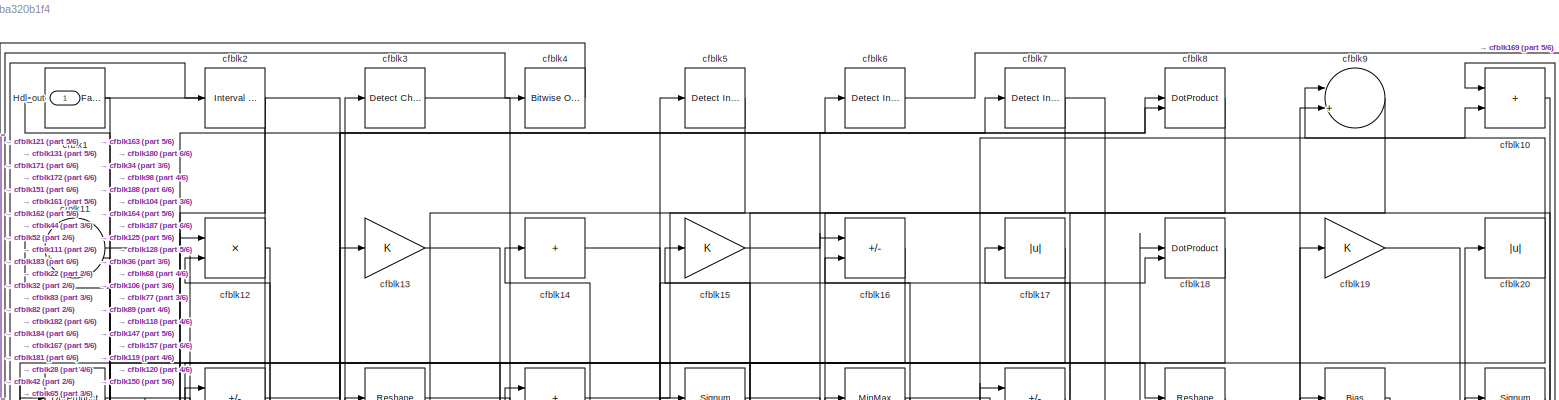
[diagram: root canvas - part 1/6, full width, top band]
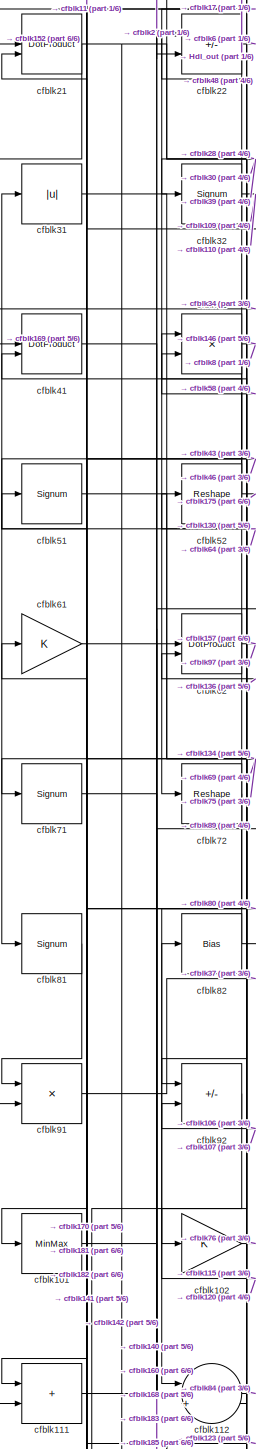
[diagram: root canvas - part 2/6, middle left region]
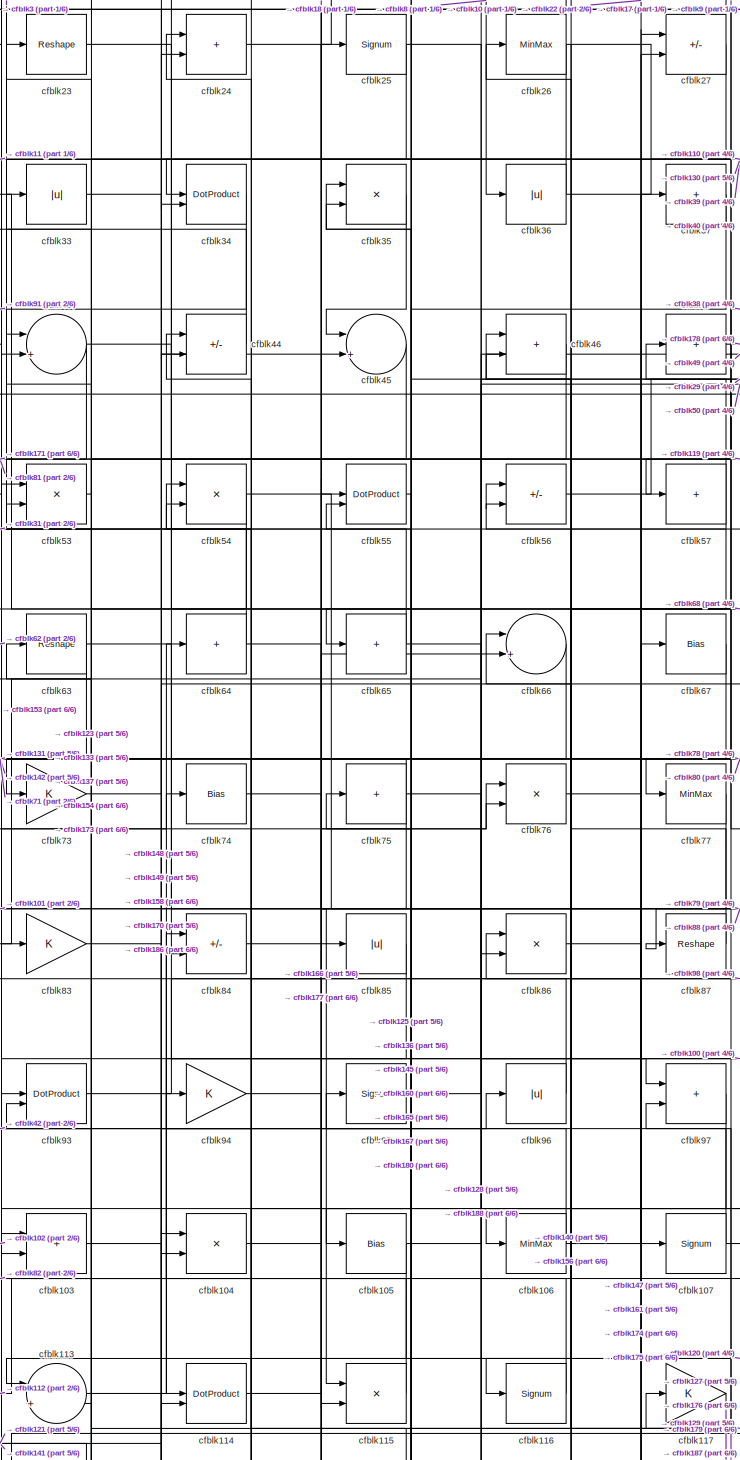
[diagram: root canvas - part 3/6, central region]
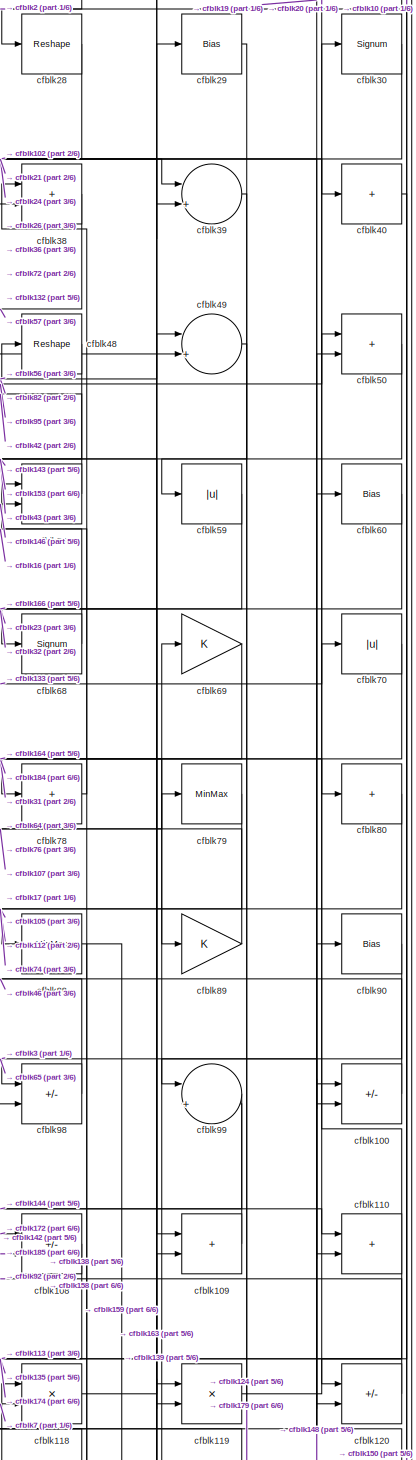
[diagram: root canvas - part 4/6, middle right region]
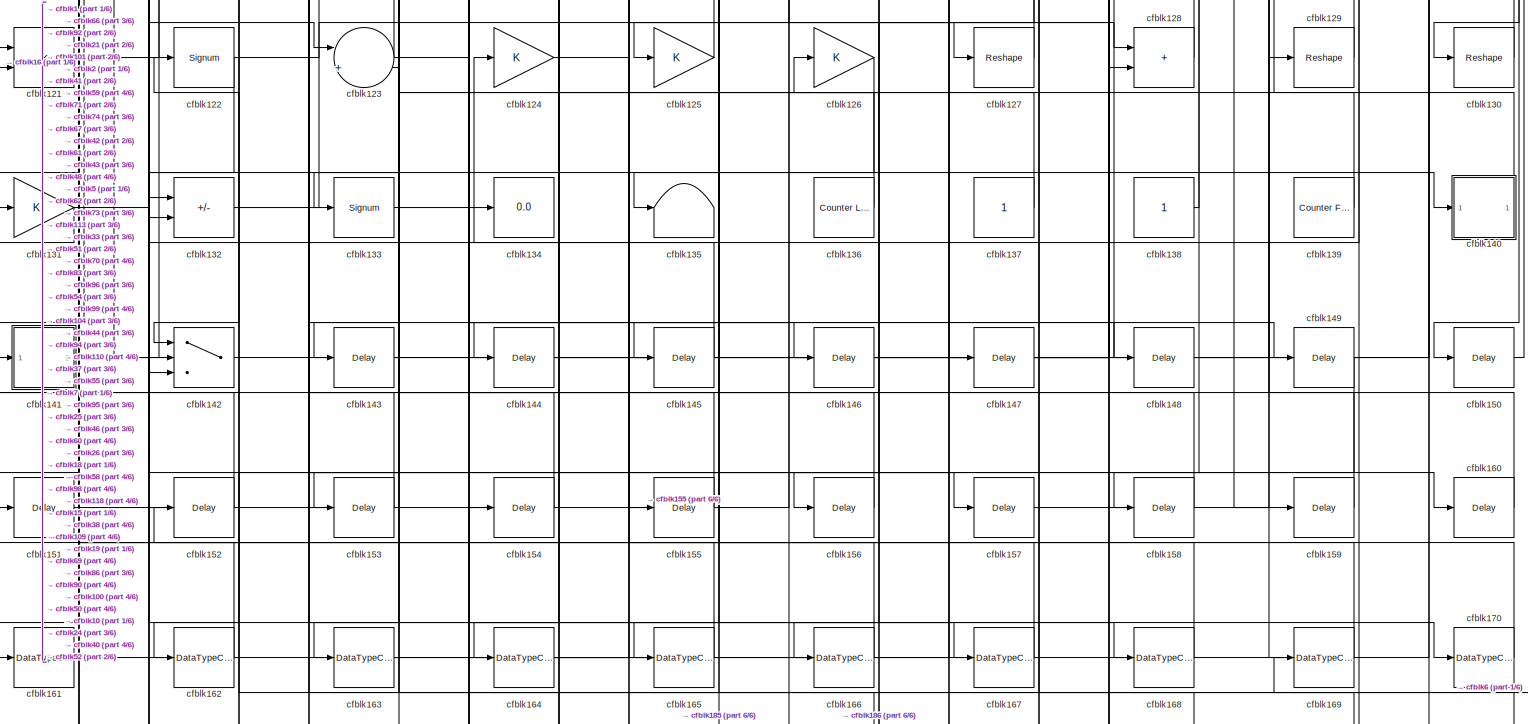
[diagram: root canvas - part 5/6, full width, bottom band]
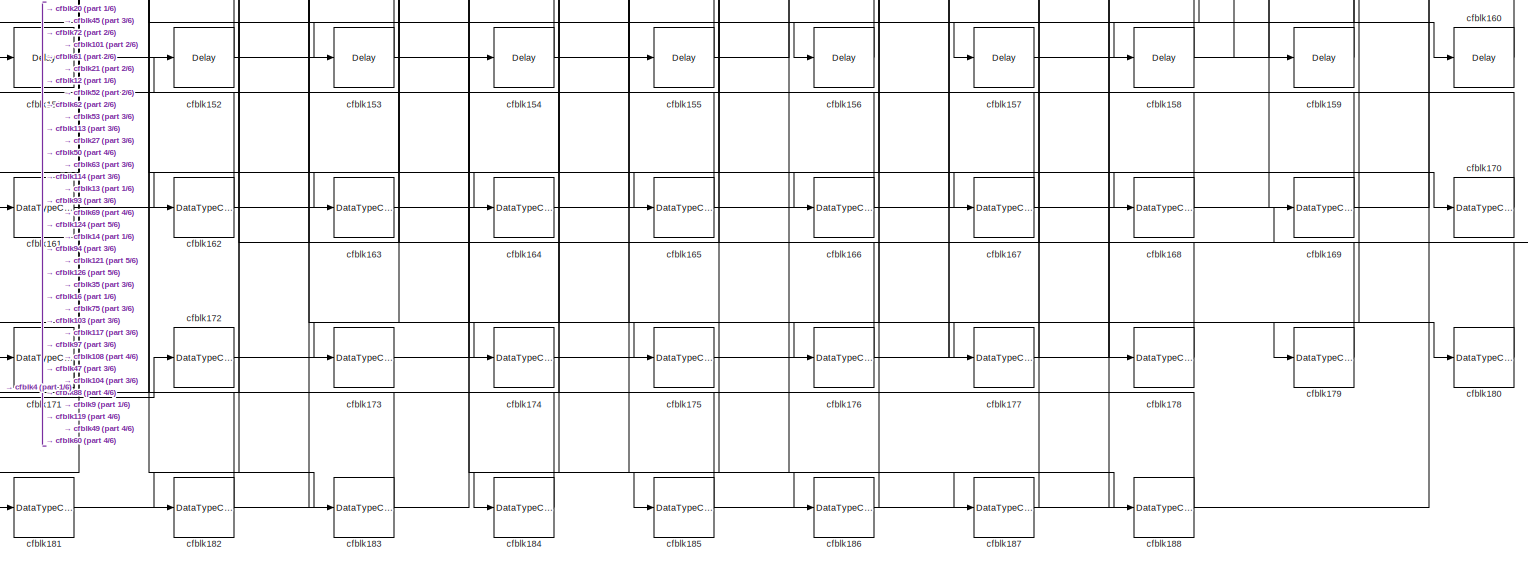
[diagram: root canvas - part 6/6, full width, bottom band]
MODEL slx_c24ba320b1f4
KIND model
CONFIG AbsTol = auto
CONFIG EnableMultiTasking = off
CONFIG FixedStep = auto
CONFIG MaxStep = auto
CONFIG MinStep = auto
CONFIG RelTol = 1e-3
CONFIG SampleTimeConstraint = Unconstrained
CONFIG SolverName = VariableStepAuto
CONFIG StartTime = 0.0
CONFIG StopTime = 10.0
BLOCK [Outport] Hdl_out
  OutDataTypeStr = uint8
BLOCK [Reference] cfblk1  REF=hdlsllib/Logic and Bit
Operations/Detect Fall
Negative
  SourceBlock = hdlsllib/Logic and Bit\nOperations/Detect Fall\nNegative
  SourceType = Detect Fall Negative
BLOCK [Sum] cfblk10
  IconShape = rectangular
  OutDataTypeStr = uint8
BLOCK [Sum] cfblk100
  IconShape = rectangular
  Inputs = +-
  OutDataTypeStr = uint8
BLOCK [MinMax] cfblk101
  OutDataTypeStr = uint8
BLOCK [Gain] cfblk102
  OutDataTypeStr = uint8
BLOCK [Sum] cfblk103
  IconShape = rectangular
  OutDataTypeStr = uint8
BLOCK [Product] cfblk104
  Inputs = */
  OutDataTypeStr = uint8
  RndMeth = Zero
  SaturateOnIntegerOverflow = on
BLOCK [Bias] cfblk105
  Bias = 0.0
  SaturateOnIntegerOverflow = off
BLOCK [MinMax] cfblk106
  OutDataTypeStr = uint8
BLOCK [Signum] cfblk107
BLOCK [Sum] cfblk108
  IconShape = rectangular
  Inputs = +-
  OutDataTypeStr = uint8
BLOCK [Sum] cfblk109
  IconShape = rectangular
  OutDataTypeStr = uint8
BLOCK [Sum] cfblk11
  Inputs = |++
  OutDataTypeStr = uint8
BLOCK [Sum] cfblk110
  IconShape = rectangular
  OutDataTypeStr = uint8
BLOCK [Sum] cfblk111
  IconShape = rectangular
  OutDataTypeStr = uint8
BLOCK [Sum] cfblk112
  Inputs = |++
  OutDataTypeStr = uint8
BLOCK [Sum] cfblk113
  Inputs = |++
  OutDataTypeStr = uint8
BLOCK [DotProduct] cfblk114
  OutDataTypeStr = uint8
BLOCK [Product] cfblk115
  Inputs = */
  OutDataTypeStr = uint8
  RndMeth = Zero
  SaturateOnIntegerOverflow = on
BLOCK [Signum] cfblk116
BLOCK [Gain] cfblk117
  OutDataTypeStr = uint8
BLOCK [Product] cfblk118
  Inputs = */
  OutDataTypeStr = uint8
  RndMeth = Zero
  SaturateOnIntegerOverflow = on
BLOCK [Product] cfblk119
  Inputs = */
  OutDataTypeStr = uint8
  RndMeth = Zero
  SaturateOnIntegerOverflow = on
BLOCK [Product] cfblk12
  Inputs = */
  OutDataTypeStr = uint8
  RndMeth = Zero
  SaturateOnIntegerOverflow = on
BLOCK [Sum] cfblk120
  IconShape = rectangular
  Inputs = +-
  OutDataTypeStr = uint8
BLOCK [Product] cfblk121
  Inputs = */
  OutDataTypeStr = uint8
  RndMeth = Zero
  SaturateOnIntegerOverflow = on
BLOCK [Signum] cfblk122
BLOCK [Sum] cfblk123
  Inputs = |++
  OutDataTypeStr = uint8
BLOCK [Gain] cfblk124
  OutDataTypeStr = uint8
BLOCK [Gain] cfblk125
  OutDataTypeStr = uint8
BLOCK [Gain] cfblk126
  OutDataTypeStr = uint8
BLOCK [Reshape] cfblk127
BLOCK [Sum] cfblk128
  IconShape = rectangular
  OutDataTypeStr = uint8
BLOCK [Reshape] cfblk129
BLOCK [Gain] cfblk13
  OutDataTypeStr = uint8
BLOCK [Reshape] cfblk130
BLOCK [Gain] cfblk131
  OutDataTypeStr = uint8
BLOCK [Sum] cfblk132
  IconShape = rectangular
  Inputs = +-
  OutDataTypeStr = uint8
BLOCK [Signum] cfblk133
BLOCK [Display] cfblk134
  Decimation = 1
BLOCK [Terminator] cfblk135
BLOCK [Reference] cfblk136  REF=hdlsllib/Sources/Counter
Limited
  SourceBlock = hdlsllib/Sources/Counter\nLimited
  SourceType = Counter Limited
BLOCK [Constant] cfblk137
  OutDataTypeStr = uint8
  SampleTime = -1
BLOCK [Constant] cfblk138
  OutDataTypeStr = uint8
  SampleTime = -1
BLOCK [Reference] cfblk139  REF=hdlsllib/Sources/Counter
Free-Running
  SourceBlock = hdlsllib/Sources/Counter\nFree-Running
  SourceType = Counter Free-Running
BLOCK [Sum] cfblk14
  IconShape = rectangular
  Inputs = +
  OutDataTypeStr = uint8
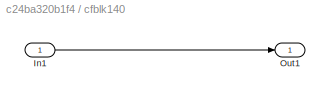
BLOCK [SubSystem] cfblk140
  LibrarySourceBlock = hdlsllib/Ports &\nSubsystems/Subsystem
BLOCK [Inport] cfblk140/In1
BLOCK [Outport] cfblk140/Out1
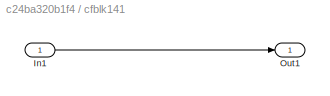
BLOCK [SubSystem] cfblk141
  LibrarySourceBlock = hdlsllib/Ports &\nSubsystems/Subsystem
BLOCK [Inport] cfblk141/In1
BLOCK [Outport] cfblk141/Out1
BLOCK [Switch] cfblk142
  InputSameDT = off
  OutDataTypeStr = uint8
  SaturateOnIntegerOverflow = off
BLOCK [Delay] cfblk143
  InputPortMap = u0
  SampleTime = 1
BLOCK [Delay] cfblk144
  InputPortMap = u0
  SampleTime = 1
BLOCK [Delay] cfblk145
  InputPortMap = u0
  SampleTime = 1
BLOCK [Delay] cfblk146
  InputPortMap = u0
  SampleTime = 1
BLOCK [Delay] cfblk147
  InputPortMap = u0
  SampleTime = 1
BLOCK [Delay] cfblk148
  InputPortMap = u0
  SampleTime = 1
BLOCK [Delay] cfblk149
  InputPortMap = u0
  SampleTime = 1
BLOCK [Gain] cfblk15
  OutDataTypeStr = uint8
BLOCK [Delay] cfblk150
  InputPortMap = u0
  SampleTime = 1
BLOCK [Delay] cfblk151
  InputPortMap = u0
  SampleTime = 1
BLOCK [Delay] cfblk152
  InputPortMap = u0
  SampleTime = 1
BLOCK [Delay] cfblk153
  InputPortMap = u0
  SampleTime = 1
BLOCK [Delay] cfblk154
  InputPortMap = u0
  SampleTime = 1
BLOCK [Delay] cfblk155
  InputPortMap = u0
  SampleTime = 1
BLOCK [Delay] cfblk156
  InputPortMap = u0
  SampleTime = 1
BLOCK [Delay] cfblk157
  InputPortMap = u0
  SampleTime = 1
BLOCK [Delay] cfblk158
  InputPortMap = u0
  SampleTime = 1
BLOCK [Delay] cfblk159
  InputPortMap = u0
  SampleTime = 1
BLOCK [Sum] cfblk16
  IconShape = rectangular
  Inputs = +-
  OutDataTypeStr = uint8
BLOCK [Delay] cfblk160
  InputPortMap = u0
  SampleTime = 1
BLOCK [DataTypeConversion] cfblk161
  OutDataTypeStr = uint8
  RndMeth = Floor
  SaturateOnIntegerOverflow = off
BLOCK [DataTypeConversion] cfblk162
  OutDataTypeStr = uint8
  RndMeth = Floor
  SaturateOnIntegerOverflow = off
BLOCK [DataTypeConversion] cfblk163
  OutDataTypeStr = uint8
  RndMeth = Floor
  SaturateOnIntegerOverflow = off
BLOCK [DataTypeConversion] cfblk164
  OutDataTypeStr = uint8
  RndMeth = Floor
  SaturateOnIntegerOverflow = off
BLOCK [DataTypeConversion] cfblk165
  OutDataTypeStr = uint8
  RndMeth = Floor
  SaturateOnIntegerOverflow = off
BLOCK [DataTypeConversion] cfblk166
  OutDataTypeStr = uint8
  RndMeth = Floor
  SaturateOnIntegerOverflow = off
BLOCK [DataTypeConversion] cfblk167
  OutDataTypeStr = uint8
  RndMeth = Floor
  SaturateOnIntegerOverflow = off
BLOCK [DataTypeConversion] cfblk168
  OutDataTypeStr = uint8
  RndMeth = Floor
  SaturateOnIntegerOverflow = off
BLOCK [DataTypeConversion] cfblk169
  OutDataTypeStr = uint8
  RndMeth = Floor
  SaturateOnIntegerOverflow = off
BLOCK [Abs] cfblk17
  OutDataTypeStr = uint8
  SaturateOnIntegerOverflow = off
BLOCK [DataTypeConversion] cfblk170
  OutDataTypeStr = uint8
  RndMeth = Floor
  SaturateOnIntegerOverflow = off
BLOCK [DataTypeConversion] cfblk171
  OutDataTypeStr = uint8
  RndMeth = Floor
  SaturateOnIntegerOverflow = off
BLOCK [DataTypeConversion] cfblk172
  OutDataTypeStr = uint8
  RndMeth = Floor
  SaturateOnIntegerOverflow = off
BLOCK [DataTypeConversion] cfblk173
  OutDataTypeStr = uint8
  RndMeth = Floor
  SaturateOnIntegerOverflow = off
BLOCK [DataTypeConversion] cfblk174
  OutDataTypeStr = uint8
  RndMeth = Floor
  SaturateOnIntegerOverflow = off
BLOCK [DataTypeConversion] cfblk175
  OutDataTypeStr = uint8
  RndMeth = Floor
  SaturateOnIntegerOverflow = off
BLOCK [DataTypeConversion] cfblk176
  OutDataTypeStr = uint8
  RndMeth = Floor
  SaturateOnIntegerOverflow = off
BLOCK [DataTypeConversion] cfblk177
  OutDataTypeStr = uint8
  RndMeth = Floor
  SaturateOnIntegerOverflow = off
BLOCK [DataTypeConversion] cfblk178
  OutDataTypeStr = uint8
  RndMeth = Floor
  SaturateOnIntegerOverflow = off
BLOCK [DataTypeConversion] cfblk179
  OutDataTypeStr = uint8
  RndMeth = Floor
  SaturateOnIntegerOverflow = off
BLOCK [DotProduct] cfblk18
  OutDataTypeStr = uint8
BLOCK [DataTypeConversion] cfblk180
  OutDataTypeStr = uint8
  RndMeth = Floor
  SaturateOnIntegerOverflow = off
BLOCK [DataTypeConversion] cfblk181
  OutDataTypeStr = uint8
  RndMeth = Floor
  SaturateOnIntegerOverflow = off
BLOCK [DataTypeConversion] cfblk182
  OutDataTypeStr = uint8
  RndMeth = Floor
  SaturateOnIntegerOverflow = off
BLOCK [DataTypeConversion] cfblk183
  OutDataTypeStr = uint8
  RndMeth = Floor
  SaturateOnIntegerOverflow = off
BLOCK [DataTypeConversion] cfblk184
  OutDataTypeStr = uint8
  RndMeth = Floor
  SaturateOnIntegerOverflow = off
BLOCK [DataTypeConversion] cfblk185
  OutDataTypeStr = uint8
  RndMeth = Floor
  SaturateOnIntegerOverflow = off
BLOCK [DataTypeConversion] cfblk186
  OutDataTypeStr = uint8
  RndMeth = Floor
  SaturateOnIntegerOverflow = off
BLOCK [DataTypeConversion] cfblk187
  OutDataTypeStr = uint8
  RndMeth = Floor
  SaturateOnIntegerOverflow = off
BLOCK [DataTypeConversion] cfblk188
  OutDataTypeStr = uint8
  RndMeth = Floor
  SaturateOnIntegerOverflow = off
BLOCK [Gain] cfblk19
  OutDataTypeStr = uint8
BLOCK [Reference] cfblk2  REF=hdlsllib/Logic and Bit
Operations/Interval Test
  SourceBlock = hdlsllib/Logic and Bit\nOperations/Interval Test
  SourceType = Interval Test
BLOCK [Abs] cfblk20
  OutDataTypeStr = uint8
  SaturateOnIntegerOverflow = off
BLOCK [DotProduct] cfblk21
  OutDataTypeStr = uint8
BLOCK [Sum] cfblk22
  IconShape = rectangular
  Inputs = +-
  OutDataTypeStr = uint8
BLOCK [Reshape] cfblk23
BLOCK [Sum] cfblk24
  IconShape = rectangular
  OutDataTypeStr = uint8
BLOCK [Signum] cfblk25
BLOCK [MinMax] cfblk26
  OutDataTypeStr = uint8
BLOCK [Sum] cfblk27
  IconShape = rectangular
  Inputs = +-
  OutDataTypeStr = uint8
BLOCK [Reshape] cfblk28
BLOCK [Bias] cfblk29
  Bias = 0.0
  SaturateOnIntegerOverflow = off
BLOCK [Reference] cfblk3  REF=simulink/Logic and Bit
Operations/Detect
Change
  LibrarySourceBlock = hdlsllib/Logic and Bit\nOperations/Detect\nChange
  SourceBlock = simulink/Logic and Bit\nOperations/Detect\nChange
  SourceType = Detect Change
BLOCK [Signum] cfblk30
BLOCK [Abs] cfblk31
  OutDataTypeStr = uint8
  SaturateOnIntegerOverflow = off
BLOCK [Signum] cfblk32
BLOCK [Abs] cfblk33
  OutDataTypeStr = uint8
  SaturateOnIntegerOverflow = off
BLOCK [DotProduct] cfblk34
  OutDataTypeStr = uint8
BLOCK [Product] cfblk35
  Inputs = */
  OutDataTypeStr = uint8
  RndMeth = Zero
  SaturateOnIntegerOverflow = on
BLOCK [Abs] cfblk36
  OutDataTypeStr = uint8
  SaturateOnIntegerOverflow = off
BLOCK [Sum] cfblk37
  IconShape = rectangular
  Inputs = +
  OutDataTypeStr = uint8
BLOCK [Sum] cfblk38
  IconShape = rectangular
  OutDataTypeStr = uint8
BLOCK [Sum] cfblk39
  Inputs = |++
  OutDataTypeStr = uint8
BLOCK [Reference] cfblk4  REF=simulink/Logic and Bit
Operations/Bitwise
Operator
  LibrarySourceBlock = hdlsllib/Logic and Bit\nOperations/Bitwise\nOperator
  SourceBlock = simulink/Logic and Bit\nOperations/Bitwise\nOperator
  SourceType = Bitwise Operator
BLOCK [Sum] cfblk40
  IconShape = rectangular
  Inputs = +
  OutDataTypeStr = uint8
BLOCK [DotProduct] cfblk41
  OutDataTypeStr = uint8
BLOCK [Product] cfblk42
  Inputs = */
  OutDataTypeStr = uint8
  RndMeth = Zero
  SaturateOnIntegerOverflow = on
BLOCK [Sum] cfblk43
  Inputs = |++
  OutDataTypeStr = uint8
BLOCK [Sum] cfblk44
  IconShape = rectangular
  Inputs = +-
  OutDataTypeStr = uint8
BLOCK [Sum] cfblk45
  Inputs = |++
  OutDataTypeStr = uint8
BLOCK [Sum] cfblk46
  IconShape = rectangular
  OutDataTypeStr = uint8
BLOCK [Sum] cfblk47
  IconShape = rectangular
  Inputs = +
  OutDataTypeStr = uint8
BLOCK [Reshape] cfblk48
BLOCK [Sum] cfblk49
  Inputs = |++
  OutDataTypeStr = uint8
BLOCK [Reference] cfblk5  REF=simulink/Logic and Bit
Operations/Detect
Increase
  LibrarySourceBlock = hdlsllib/Logic and Bit\nOperations/Detect\nIncrease
  SourceBlock = simulink/Logic and Bit\nOperations/Detect\nIncrease
  SourceType = Detect Increase
BLOCK [Sum] cfblk50
  IconShape = rectangular
  OutDataTypeStr = uint8
BLOCK [Signum] cfblk51
BLOCK [Reshape] cfblk52
BLOCK [Product] cfblk53
  Inputs = */
  OutDataTypeStr = uint8
  RndMeth = Zero
  SaturateOnIntegerOverflow = on
BLOCK [Product] cfblk54
  Inputs = */
  OutDataTypeStr = uint8
  RndMeth = Zero
  SaturateOnIntegerOverflow = on
BLOCK [DotProduct] cfblk55
  OutDataTypeStr = uint8
BLOCK [Sum] cfblk56
  IconShape = rectangular
  Inputs = +-
  OutDataTypeStr = uint8
BLOCK [Sum] cfblk57
  IconShape = rectangular
  Inputs = +
  OutDataTypeStr = uint8
BLOCK [Sum] cfblk58
  IconShape = rectangular
  OutDataTypeStr = uint8
BLOCK [Abs] cfblk59
  OutDataTypeStr = uint8
  SaturateOnIntegerOverflow = off
BLOCK [Reference] cfblk6  REF=simulink/Logic and Bit
Operations/Detect
Increase
  LibrarySourceBlock = hdlsllib/Logic and Bit\nOperations/Detect\nIncrease
  SourceBlock = simulink/Logic and Bit\nOperations/Detect\nIncrease
  SourceType = Detect Increase
BLOCK [Bias] cfblk60
  Bias = 0.0
  SaturateOnIntegerOverflow = off
BLOCK [Gain] cfblk61
  OutDataTypeStr = uint8
BLOCK [DotProduct] cfblk62
  OutDataTypeStr = uint8
BLOCK [Reshape] cfblk63
BLOCK [Sum] cfblk64
  IconShape = rectangular
  Inputs = +
  OutDataTypeStr = uint8
BLOCK [Sum] cfblk65
  IconShape = rectangular
  Inputs = +
  OutDataTypeStr = uint8
BLOCK [Sum] cfblk66
  Inputs = |++
  OutDataTypeStr = uint8
BLOCK [Bias] cfblk67
  Bias = 0.0
  SaturateOnIntegerOverflow = off
BLOCK [Signum] cfblk68
BLOCK [Gain] cfblk69
  OutDataTypeStr = uint8
BLOCK [Reference] cfblk7  REF=simulink/Logic and Bit
Operations/Detect
Increase
  LibrarySourceBlock = hdlsllib/Logic and Bit\nOperations/Detect\nIncrease
  SourceBlock = simulink/Logic and Bit\nOperations/Detect\nIncrease
  SourceType = Detect Increase
BLOCK [Abs] cfblk70
  OutDataTypeStr = uint8
  SaturateOnIntegerOverflow = off
BLOCK [Signum] cfblk71
BLOCK [Reshape] cfblk72
BLOCK [Gain] cfblk73
  OutDataTypeStr = uint8
BLOCK [Bias] cfblk74
  Bias = 0.0
  SaturateOnIntegerOverflow = off
BLOCK [Sum] cfblk75
  IconShape = rectangular
  Inputs = +
  OutDataTypeStr = uint8
BLOCK [Product] cfblk76
  Inputs = */
  OutDataTypeStr = uint8
  RndMeth = Zero
  SaturateOnIntegerOverflow = on
BLOCK [MinMax] cfblk77
  OutDataTypeStr = uint8
BLOCK [Sum] cfblk78
  IconShape = rectangular
  Inputs = +
  OutDataTypeStr = uint8
BLOCK [MinMax] cfblk79
  OutDataTypeStr = uint8
BLOCK [DotProduct] cfblk8
  OutDataTypeStr = uint8
BLOCK [Sum] cfblk80
  IconShape = rectangular
  Inputs = +
  OutDataTypeStr = uint8
BLOCK [Signum] cfblk81
BLOCK [Bias] cfblk82
  Bias = 0.0
  SaturateOnIntegerOverflow = off
BLOCK [Gain] cfblk83
  OutDataTypeStr = uint8
BLOCK [Sum] cfblk84
  IconShape = rectangular
  Inputs = +-
  OutDataTypeStr = uint8
BLOCK [Abs] cfblk85
  OutDataTypeStr = uint8
  SaturateOnIntegerOverflow = off
BLOCK [Product] cfblk86
  Inputs = */
  OutDataTypeStr = uint8
  RndMeth = Zero
  SaturateOnIntegerOverflow = on
BLOCK [Reshape] cfblk87
BLOCK [MinMax] cfblk88
  OutDataTypeStr = uint8
BLOCK [Gain] cfblk89
  OutDataTypeStr = uint8
BLOCK [Sum] cfblk9
  Inputs = |++
  OutDataTypeStr = uint8
BLOCK [Bias] cfblk90
  Bias = 0.0
  SaturateOnIntegerOverflow = off
BLOCK [Product] cfblk91
  Inputs = */
  OutDataTypeStr = uint8
  RndMeth = Zero
  SaturateOnIntegerOverflow = on
BLOCK [Sum] cfblk92
  IconShape = rectangular
  Inputs = +-
  OutDataTypeStr = uint8
BLOCK [DotProduct] cfblk93
  OutDataTypeStr = uint8
BLOCK [Gain] cfblk94
  OutDataTypeStr = uint8
BLOCK [Signum] cfblk95
BLOCK [Abs] cfblk96
  OutDataTypeStr = uint8
  SaturateOnIntegerOverflow = off
BLOCK [Sum] cfblk97
  IconShape = rectangular
  OutDataTypeStr = uint8
BLOCK [Sum] cfblk98
  IconShape = rectangular
  Inputs = +-
  OutDataTypeStr = uint8
BLOCK [Sum] cfblk99
  Inputs = |++
  OutDataTypeStr = uint8
NET cfblk100:1 -> cfblk56:1, cfblk56:2
NET cfblk101:1 -> cfblk123:1, cfblk160:1
LINE cfblk102:1 -> cfblk76:2
LINE cfblk103:1 -> cfblk186:1
NET cfblk104:1 -> cfblk128:1, cfblk18:2, cfblk66:2
NET cfblk105:1 -> cfblk115:2, cfblk49:2
NET cfblk106:1 -> cfblk10:2, cfblk22:1
NET cfblk107:1 -> cfblk42:2, cfblk79:1
LINE cfblk108:1 -> cfblk174:1
LINE cfblk109:1 -> cfblk99:2
LINE cfblk10:1 -> cfblk120:1
NET cfblk110:1 -> cfblk135:1, cfblk30:1
LINE cfblk111:1 -> cfblk8:1
LINE cfblk112:1 -> cfblk84:1
NET cfblk113:1 -> cfblk148:1, cfblk64:1
LINE cfblk114:1 -> cfblk76:1
LINE cfblk115:1 -> cfblk82:1
LINE cfblk116:1 -> cfblk84:2
LINE cfblk117:1 -> cfblk176:1
LINE cfblk118:1 -> cfblk49:1
LINE cfblk119:1 -> cfblk20:1
LINE cfblk11:1 -> cfblk83:1
NET cfblk120:1 -> cfblk113:1, cfblk92:2
LINE cfblk121:1 -> cfblk43:2
NET cfblk122:1 -> cfblk127:1, cfblk142:3
NET cfblk123:1 -> cfblk61:1, cfblk96:1
LINE cfblk124:1 -> cfblk155:1
NET cfblk125:1 -> cfblk44:1, cfblk94:1
LINE cfblk126:1 -> cfblk185:1
NET cfblk127:1 -> cfblk26:1, cfblk54:1
LINE cfblk128:1 -> cfblk15:1
LINE cfblk129:1 -> cfblk86:1
LINE cfblk12:1 -> cfblk182:1
LINE cfblk130:1 -> cfblk52:1
NET cfblk131:1 -> cfblk2:1, cfblk74:1
LINE cfblk132:1 -> cfblk38:2
LINE cfblk133:1 -> cfblk70:1
NET cfblk136:1 -> cfblk62:2, cfblk95:1
LINE cfblk137:1 -> cfblk43:1
LINE cfblk138:1 -> cfblk38:1
LINE cfblk139:1 -> cfblk69:1
LINE cfblk13:1 -> cfblk180:1
LINE cfblk140/In1:1 -> cfblk140/Out1:1
NET cfblk140:1 -> cfblk46:2, cfblk54:2
LINE cfblk141/In1:1 -> cfblk141/Out1:1
LINE cfblk141:1 -> cfblk24:2
NET cfblk142:1 -> cfblk118:1, cfblk50:2
LINE cfblk143:1 -> cfblk98:2
LINE cfblk144:1 -> cfblk109:2
LINE cfblk145:1 -> cfblk132:1
LINE cfblk146:1 -> cfblk58:2
LINE cfblk147:1 -> cfblk18:1
LINE cfblk148:1 -> cfblk100:1
LINE cfblk149:1 -> cfblk162:1
LINE cfblk14:1 -> cfblk187:1
LINE cfblk150:1 -> cfblk10:1
LINE cfblk151:1 -> cfblk16:1
LINE cfblk152:1 -> cfblk21:1
LINE cfblk153:1 -> cfblk53:1
LINE cfblk154:1 -> cfblk93:2
LINE cfblk155:1 -> cfblk121:1
LINE cfblk156:1 -> cfblk103:1
LINE cfblk157:1 -> cfblk9:2
LINE cfblk158:1 -> cfblk104:1
LINE cfblk159:1 -> cfblk119:1
LINE cfblk15:1 -> cfblk7:1
LINE cfblk160:1 -> cfblk75:1
LINE cfblk161:1 -> cfblk67:1
LINE cfblk162:1 -> cfblk1:1
NET cfblk163:1 -> cfblk129:1, cfblk19:1, cfblk90:1
LINE cfblk164:1 -> cfblk5:1
LINE cfblk165:1 -> cfblk122:1
LINE cfblk166:1 -> cfblk55:1
LINE cfblk167:1 -> cfblk55:2
LINE cfblk168:1 -> cfblk51:1
LINE cfblk169:1 -> cfblk41:1
LINE cfblk16:1 -> cfblk121:2
LINE cfblk170:1 -> cfblk41:2
LINE cfblk171:1 -> cfblk4:1
LINE cfblk172:1 -> cfblk108:1
LINE cfblk173:1 -> cfblk114:2
LINE cfblk174:1 -> cfblk27:1
LINE cfblk175:1 -> cfblk27:2
LINE cfblk176:1 -> cfblk63:1
LINE cfblk177:1 -> cfblk117:1
LINE cfblk178:1 -> cfblk152:1
LINE cfblk179:1 -> cfblk47:1
NET cfblk17:1 -> cfblk32:1, cfblk34:2
NET cfblk180:1 -> cfblk113:2, cfblk35:2, cfblk93:1
LINE cfblk181:1 -> cfblk13:1
NET cfblk182:1 -> cfblk154:1, cfblk21:2
LINE cfblk183:1 -> cfblk12:1
LINE cfblk184:1 -> cfblk12:2
NET cfblk185:1 -> cfblk108:2, cfblk60:1, cfblk62:1
LINE cfblk186:1 -> cfblk126:1
LINE cfblk187:1 -> cfblk97:2
LINE cfblk188:1 -> cfblk14:1
LINE cfblk18:1 -> cfblk65:1
LINE cfblk19:1 -> cfblk120:2
LINE cfblk1:1 -> cfblk161:1
NET cfblk20:1 -> cfblk151:1, cfblk9:1
NET cfblk21:1 -> cfblk111:2, cfblk142:2, cfblk39:2
LINE cfblk22:1 -> cfblk6:1
LINE cfblk23:1 -> cfblk68:1
NET cfblk24:1 -> cfblk130:1, cfblk40:1
NET cfblk25:1 -> cfblk128:2, cfblk73:1
NET cfblk26:1 -> cfblk110:2, cfblk116:1, cfblk44:2
LINE cfblk27:1 -> cfblk173:1
LINE cfblk28:1 -> cfblk72:1
LINE cfblk29:1 -> cfblk59:1
NET cfblk2:1 -> cfblk167:1, cfblk22:2, cfblk28:1
LINE cfblk30:1 -> cfblk102:1
LINE cfblk31:1 -> cfblk89:1
NET cfblk32:1 -> cfblk109:1, cfblk110:1
LINE cfblk33:1 -> cfblk170:1
LINE cfblk34:1 -> cfblk91:2
LINE cfblk35:1 -> cfblk45:1
NET cfblk36:1 -> cfblk34:1, cfblk39:1
LINE cfblk37:1 -> cfblk145:1
LINE cfblk38:1 -> cfblk57:1
LINE cfblk39:1 -> cfblk99:1
LINE cfblk3:1 -> cfblk98:1
LINE cfblk40:1 -> cfblk150:1
LINE cfblk41:1 -> cfblk168:1
NET cfblk42:1 -> cfblk111:1, cfblk146:1, cfblk8:2
NET cfblk43:1 -> cfblk119:2, cfblk81:1
LINE cfblk44:1 -> cfblk11:2
LINE cfblk45:1 -> cfblk171:1
LINE cfblk46:1 -> cfblk112:2
LINE cfblk47:1 -> cfblk178:1
LINE cfblk48:1 -> cfblk143:1
LINE cfblk49:1 -> cfblk179:1
LINE cfblk4:1 -> cfblk172:1
LINE cfblk50:1 -> cfblk153:1
LINE cfblk51:1 -> cfblk134:1
NET cfblk52:1 -> cfblk11:1, cfblk175:1
LINE cfblk53:1 -> cfblk23:1
NET cfblk54:1 -> cfblk107:1, cfblk133:1
LINE cfblk55:1 -> cfblk165:1
LINE cfblk56:1 -> cfblk29:1
NET cfblk57:1 -> cfblk106:1, cfblk35:1, cfblk53:2
LINE cfblk58:1 -> cfblk42:1
LINE cfblk59:1 -> cfblk132:2
LINE cfblk5:1 -> cfblk163:1
LINE cfblk60:1 -> cfblk166:1
LINE cfblk61:1 -> cfblk183:1
NET cfblk62:1 -> cfblk157:1, cfblk97:1
NET cfblk63:1 -> cfblk103:2, cfblk85:1
NET cfblk64:1 -> cfblk31:1, cfblk78:1, cfblk86:2
NET cfblk65:1 -> cfblk100:2, cfblk3:1
LINE cfblk66:1 -> cfblk131:1
NET cfblk67:1 -> cfblk104:2, cfblk142:1
LINE cfblk68:1 -> cfblk16:2
NET cfblk69:1 -> cfblk184:1, cfblk92:1
LINE cfblk6:1 -> cfblk169:1
LINE cfblk70:1 -> cfblk164:1
LINE cfblk71:1 -> cfblk140:1
LINE cfblk72:1 -> cfblk181:1
NET cfblk73:1 -> cfblk123:2, cfblk33:1, cfblk45:2
LINE cfblk74:1 -> cfblk88:1
NET cfblk75:1 -> cfblk101:1, cfblk188:1, cfblk71:1
LINE cfblk76:1 -> cfblk80:1
LINE cfblk77:1 -> cfblk87:1
LINE cfblk78:1 -> cfblk58:1
LINE cfblk79:1 -> cfblk105:1
NET cfblk7:1 -> cfblk118:2, cfblk125:1
LINE cfblk80:1 -> cfblk112:1
LINE cfblk81:1 -> cfblk91:1
NET cfblk82:1 -> Hdl_out:1, cfblk48:1
LINE cfblk83:1 -> cfblk149:1
LINE cfblk84:1 -> cfblk115:1
LINE cfblk85:1 -> cfblk114:1
LINE cfblk86:1 -> cfblk147:1
LINE cfblk87:1 -> cfblk66:1
NET cfblk88:1 -> cfblk158:1, cfblk159:1
LINE cfblk89:1 -> cfblk17:1
LINE cfblk8:1 -> cfblk36:1
LINE cfblk90:1 -> cfblk124:1
LINE cfblk91:1 -> cfblk37:1
LINE cfblk92:1 -> cfblk141:1
LINE cfblk93:1 -> cfblk25:1
LINE cfblk94:1 -> cfblk177:1
LINE cfblk95:1 -> cfblk50:1
LINE cfblk96:1 -> cfblk24:1
LINE cfblk97:1 -> cfblk156:1
LINE cfblk98:1 -> cfblk46:1
LINE cfblk99:1 -> cfblk144:1
LINE cfblk9:1 -> cfblk77:1
note: NET lines group one-source signal fan-out (src -> all destinations, sorted); 1:1 wires keep LINE
